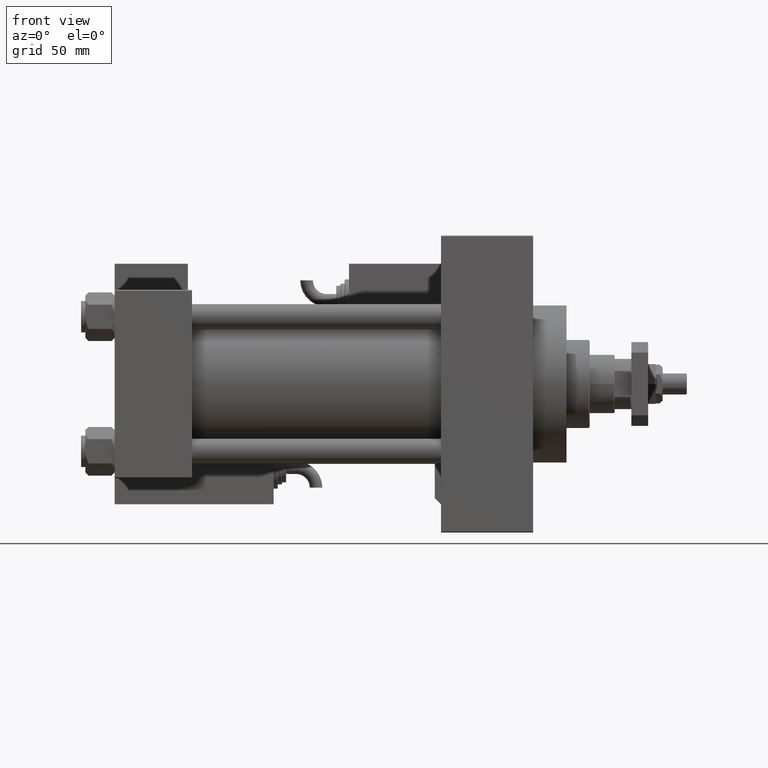
[diagram: clean part render]
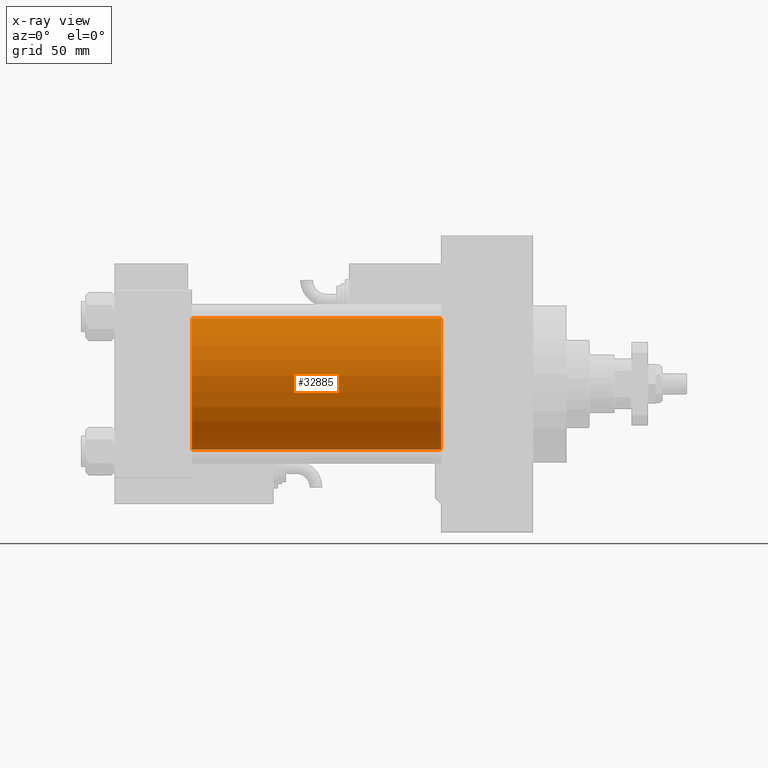
[diagram: x-ray — body ghosted, one internal face saturated and labeled with its STEP entity id]
A machine part, front view, then the same camera in x-ray: the body is ghosted and one INTERNAL B-rep face — a face not visible from any outside direction — is saturated and labeled: STEP entity #32885.
In plain terms, the highlighted cylindrical surface (partial cylindrical patch) has radius 31.5 mm, axis along (-1, -0, -0).
Its self-contained STEP definition (entity closure, byte-faithful):
#766 = CIRCLE ( 'NONE', #50487, 31.50000000000000000 ) ;
#789 = CARTESIAN_POINT ( 'NONE',  ( 156.0000000000000000, -2.602085213965210642E-15, 31.50000000000000000 ) ) ;
#1698 = ORIENTED_EDGE ( 'NONE', *, *, #16132, .F. ) ;
#2403 = DIRECTION ( 'NONE',  ( 0.000000000000000000, 0.000000000000000000, -1.000000000000000000 ) ) ;
#3301 = EDGE_CURVE ( 'NONE', #43415, #11266, #766, .T. ) ;
#4300 = CARTESIAN_POINT ( 'NONE',  ( 37.00000000000000000, 1.255552203348951850E-15, -31.50000000000000000 ) ) ;
#4654 = DIRECTION ( 'NONE',  ( -1.000000000000000000, -0.000000000000000000, -0.000000000000000000 ) ) ;
#7167 = CYLINDRICAL_SURFACE ( 'NONE', #22425, 31.50000000000000000 ) ;
#7275 = CARTESIAN_POINT ( 'NONE',  ( 156.0000000000000000, -2.602085213965210642E-15, 31.50000000000000000 ) ) ;
#7884 = CARTESIAN_POINT ( 'NONE',  ( 156.0000000000000000, -2.602085213965210642E-15, 0.000000000000000000 ) ) ;
#8382 = CARTESIAN_POINT ( 'NONE',  ( 37.00000000000000000, -2.602085213965210642E-15, 31.50000000000000000 ) ) ;
#9147 = VECTOR ( 'NONE', #4654, 1000.000000000000000 ) ;
#9851 = EDGE_CURVE ( 'NONE', #18972, #11266, #37668, .T. ) ;
#11266 = VERTEX_POINT ( 'NONE', #4300 ) ;
#12106 = DIRECTION ( 'NONE',  ( 0.000000000000000000, 0.000000000000000000, -1.000000000000000000 ) ) ;
#13020 = LINE ( 'NONE', #7275, #9147 ) ;
#14398 = DIRECTION ( 'NONE',  ( 1.000000000000000000, 0.000000000000000000, 0.000000000000000000 ) ) ;
#15250 = FACE_OUTER_BOUND ( 'NONE', #48709, .T. ) ;
#16132 = EDGE_CURVE ( 'NONE', #53696, #43415, #13020, .T. ) ;
#18972 = VERTEX_POINT ( 'NONE', #23574 ) ;
#19140 = DIRECTION ( 'NONE',  ( 0.000000000000000000, 0.000000000000000000, 1.000000000000000000 ) ) ;
#21169 = CIRCLE ( 'NONE', #27367, 31.50000000000000000 ) ;
#21532 = DIRECTION ( 'NONE',  ( 1.000000000000000000, 0.000000000000000000, 0.000000000000000000 ) ) ;
#22425 = AXIS2_PLACEMENT_3D ( 'NONE', #36634, #44993, #19140 ) ;
#23574 = CARTESIAN_POINT ( 'NONE',  ( 156.0000000000000000, 1.255552203348951850E-15, -31.50000000000000000 ) ) ;
#26597 = ORIENTED_EDGE ( 'NONE', *, *, #9851, .T. ) ;
#27367 = AXIS2_PLACEMENT_3D ( 'NONE', #7884, #14398, #2403 ) ;
#28761 = CARTESIAN_POINT ( 'NONE',  ( 37.00000000000000000, -2.602085213965210642E-15, 0.000000000000000000 ) ) ;
#32885 = ADVANCED_FACE ( 'NONE', ( #15250 ), #7167, .F. ) ;
#34327 = CARTESIAN_POINT ( 'NONE',  ( 156.0000000000000000, 1.255552203348951850E-15, -31.50000000000000000 ) ) ;
#36634 = CARTESIAN_POINT ( 'NONE',  ( 156.0000000000000000, -2.602085213965210642E-15, 0.000000000000000000 ) ) ;
#37668 = LINE ( 'NONE', #34327, #40919 ) ;
#40919 = VECTOR ( 'NONE', #50467, 1000.000000000000000 ) ;
#41450 = ORIENTED_EDGE ( 'NONE', *, *, #47562, .T. ) ;
#43415 = VERTEX_POINT ( 'NONE', #8382 ) ;
#44993 = DIRECTION ( 'NONE',  ( -1.000000000000000000, -0.000000000000000000, -0.000000000000000000 ) ) ;
#47562 = EDGE_CURVE ( 'NONE', #53696, #18972, #21169, .T. ) ;
#48709 = EDGE_LOOP ( 'NONE', ( #41450, #26597, #51985, #1698 ) ) ;
#50467 = DIRECTION ( 'NONE',  ( -1.000000000000000000, -0.000000000000000000, -0.000000000000000000 ) ) ;
#50487 = AXIS2_PLACEMENT_3D ( 'NONE', #28761, #21532, #12106 ) ;
#51985 = ORIENTED_EDGE ( 'NONE', *, *, #3301, .F. ) ;
#53696 = VERTEX_POINT ( 'NONE', #789 ) ;